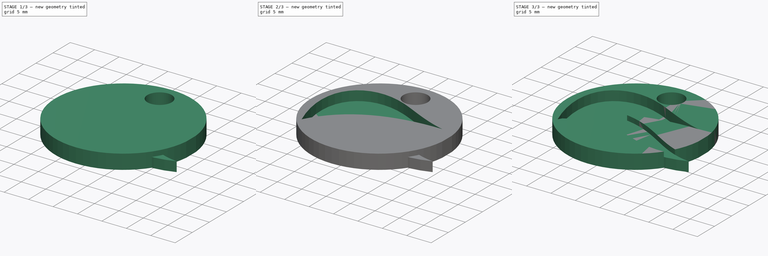
[diagram: build sequence overview — one tinted view per stage of 3, left to right]
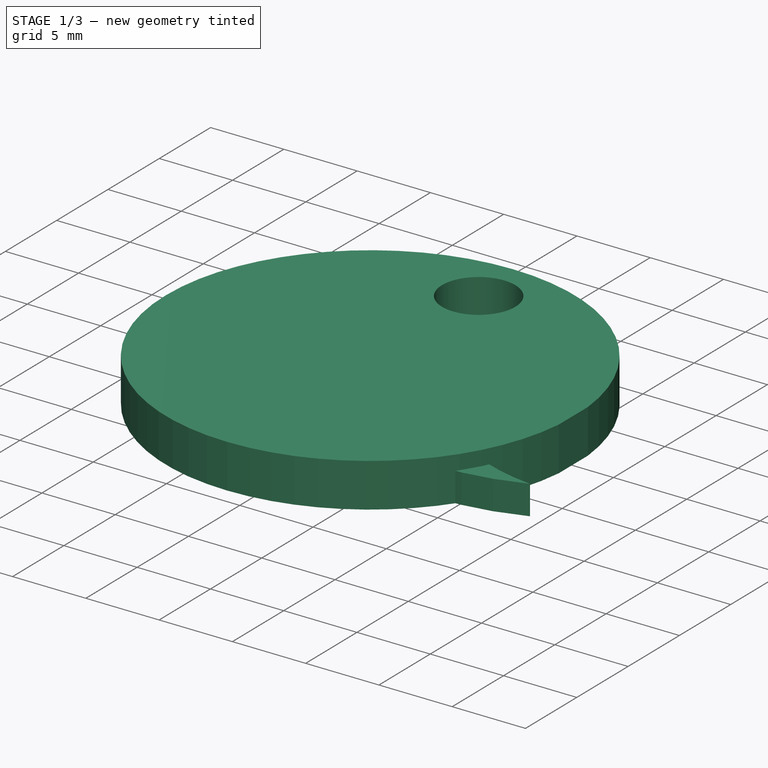
[diagram: stage 1 of 3 — iso view after this stage's code; geometry added in this stage tinted green]
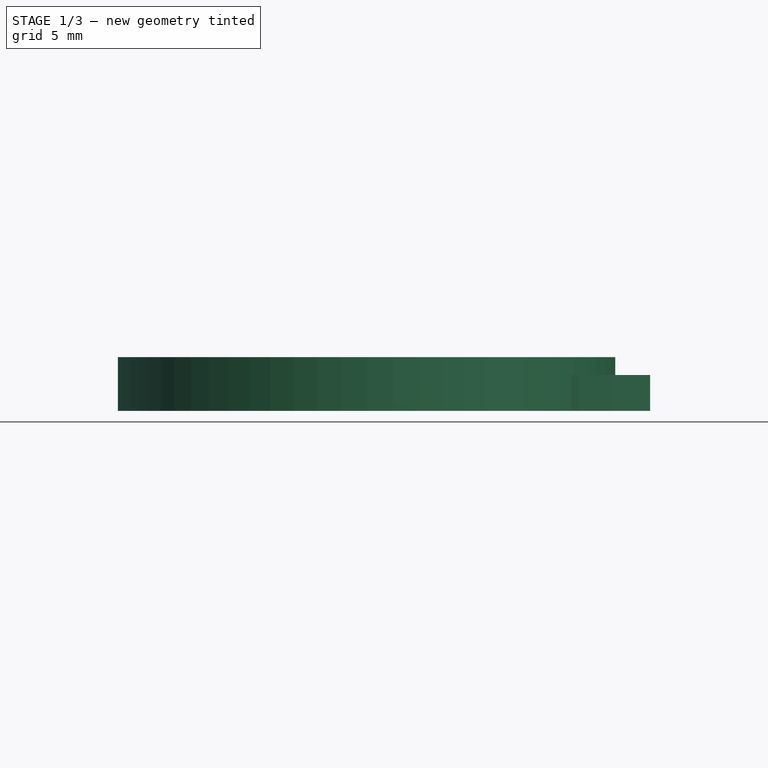
[diagram: stage 1 of 3 — front view after this stage's code; geometry added in this stage tinted green]
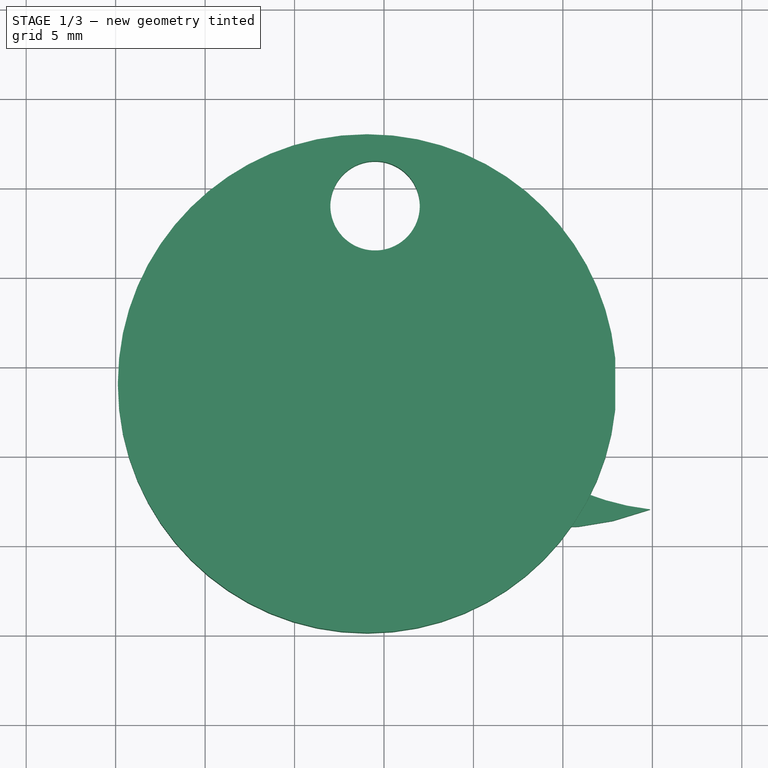
[diagram: stage 1 of 3 — top view after this stage's code; geometry added in this stage tinted green]
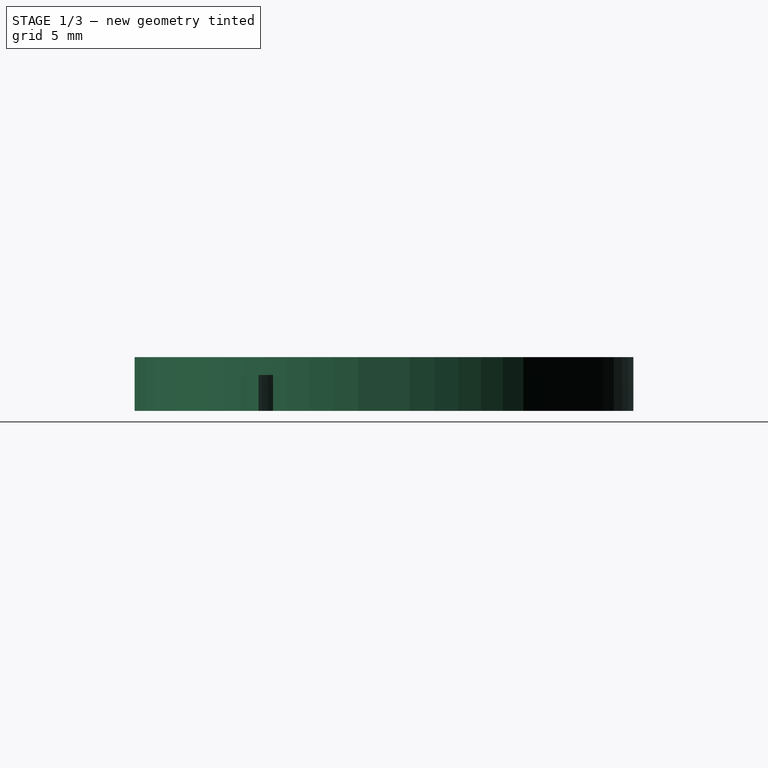
[diagram: stage 1 of 3 — right view after this stage's code; geometry added in this stage tinted green]
FCSTD DOCUMENT  (FreeCAD 0.16RUnknown)
Label: Qupzilla
License: CreativeCommons Attribution-ShareAlike
LicenseURL: http://creativecommons.org/licenses/by-sa/4.0/
objects: Sketcher::SketchObject×4, PartDesign::Pad×4, Part::Feature×2, Part::Cut×2, App::DocumentObjectGroup×1, Part::Fuse×1
note: 17 computed .brp shape members not serialized (recipe doc carries the construction recipe); baked Part::Feature solids carry a one-line shape summary decoded from their .brp

FEATURE [Part::Feature] Sweep  label="key-ring-model-1"
  Placement = pos=(-1.2,30.2546,1.6391) rot=(0.333333,0.881918,0.333333;1.69612rad)
  shape: bbox 3.31 x 27.02 x 26.33 mm, 4 faces (baked)
FEATURE [Part::Feature] Cut  label="key-model-1"
  Placement = pos=(-5.46976,36.5266,0) rot=(0,0,1;0.517888rad)
  shape: bbox 49.82 x 36.6 x 2.3 mm, 44 faces (baked)
FEATURE [App::DocumentObjectGroup] Group  label="Assembly"
  Group = -> [Sweep,Cut]
FEATURE [Sketcher::SketchObject] Sketch
  sketch-geometry (64):
    g0: LineSegment StartX=27.9261 StartY=15.4847 StartZ=0 EndX=27.9261 EndY=12.6345 EndZ=0
    g1: LineSegment StartX=27.9261 StartY=12.6345 StartZ=0 EndX=27.7149 EndY=11.2505 EndZ=0
    g2: LineSegment StartX=27.7149 StartY=11.2505 StartZ=0 EndX=27.3715 EndY=9.91471 EndZ=0
    g3: LineSegment StartX=27.3715 StartY=9.91471 StartZ=0 EndX=26.9028 EndY=8.6341 EndZ=0
    g4: LineSegment StartX=26.9028 StartY=8.6341 StartZ=0 EndX=26.3158 EndY=7.41568 EndZ=0
    g5: LineSegment StartX=26.3158 StartY=7.41568 StartZ=0 EndX=25.6176 EndY=6.26644 EndZ=0
    g6: LineSegment StartX=25.6176 StartY=6.26644 StartZ=0 EndX=24.8152 EndY=5.19341 EndZ=0
    g7: LineSegment StartX=24.8152 StartY=5.19341 StartZ=0 EndX=23.9156 EndY=4.20358 EndZ=0
    g8: LineSegment StartX=23.9156 StartY=4.20358 StartZ=0 EndX=22.9258 EndY=3.30396 EndZ=0
    g9: LineSegment StartX=22.9258 StartY=3.30396 StartZ=0 EndX=21.8527 EndY=2.50156 EndZ=0
    g10: LineSegment StartX=21.8527 StartY=2.50156 StartZ=0 EndX=20.7035 EndY=1.80338 EndZ=0
    g11: LineSegment StartX=20.7035 StartY=1.80338 StartZ=0 EndX=19.4851 EndY=1.21644 EndZ=0
    g12: LineSegment StartX=19.4851 StartY=1.21644 StartZ=0 EndX=18.2045 EndY=0.74773 EndZ=0
    g13: LineSegment StartX=18.2045 StartY=0.74773 StartZ=0 EndX=16.8687 EndY=0.40426 EndZ=0
    g14: LineSegment StartX=16.8687 StartY=0.40426 StartZ=0 EndX=15.4847 EndY=0.19304 EndZ=0
    g15: LineSegment StartX=15.4847 StartY=0.19304 StartZ=0 EndX=14.0596 EndY=0.12104 EndZ=0
    g16: LineSegment StartX=14.0596 StartY=0.12104 StartZ=0 EndX=12.6345 EndY=0.19304 EndZ=0
    g17: LineSegment StartX=12.6345 StartY=0.19304 StartZ=0 EndX=11.2505 EndY=0.40426 EndZ=0
    g18: LineSegment StartX=11.2505 StartY=0.40426 StartZ=0 EndX=9.9147 EndY=0.74773 EndZ=0
    g19: LineSegment StartX=9.9147 StartY=0.74773 StartZ=0 EndX=8.63409 EndY=1.21644 EndZ=0
    g20: LineSegment StartX=8.63409 StartY=1.21644 StartZ=0 EndX=7.41566 EndY=1.80339 EndZ=0
    g21: LineSegment StartX=7.41566 StartY=1.80339 StartZ=0 EndX=6.26643 EndY=2.50156 EndZ=0
    g22: LineSegment StartX=6.26643 StartY=2.50156 StartZ=0 EndX=5.1934 EndY=3.30396 EndZ=0
    g23: LineSegment StartX=5.1934 StartY=3.30396 StartZ=0 EndX=4.20357 EndY=4.20358 EndZ=0
    g24: LineSegment StartX=4.20357 StartY=4.20358 StartZ=0 EndX=3.30395 EndY=5.19341 EndZ=0
    g25: LineSegment StartX=3.30395 StartY=5.19341 StartZ=0 EndX=2.50155 EndY=6.26644 EndZ=0
    g26: LineSegment StartX=2.50155 StartY=6.26644 StartZ=0 EndX=1.80337 EndY=7.41568 EndZ=0
    g27: LineSegment StartX=1.80337 StartY=7.41568 StartZ=0 EndX=1.21643 EndY=8.6341 EndZ=0
    g28: LineSegment StartX=1.21643 StartY=8.6341 StartZ=0 EndX=0.747716 EndY=9.91471 EndZ=0
    g29: LineSegment StartX=0.747716 StartY=9.91471 StartZ=0 EndX=0.404249 EndY=11.2505 EndZ=0
    g30: LineSegment StartX=0.404249 StartY=11.2505 StartZ=0 EndX=0.19303 EndY=12.6345 EndZ=0
    g31: LineSegment StartX=0.19303 StartY=12.6345 StartZ=0 EndX=0.121068 EndY=14.0596 EndZ=0
    g32: LineSegment StartX=0.121068 StartY=14.0596 StartZ=0 EndX=0.193031 EndY=15.4847 EndZ=0
    g33: LineSegment StartX=0.193031 StartY=15.4847 StartZ=0 EndX=0.404249 EndY=16.8687 EndZ=0
    g34: LineSegment StartX=0.404249 StartY=16.8687 StartZ=0 EndX=0.747716 EndY=18.2045 EndZ=0
    g35: LineSegment StartX=0.747716 StartY=18.2045 StartZ=0 EndX=1.21643 EndY=19.4851 EndZ=0
    g36: LineSegment StartX=1.21643 StartY=19.4851 StartZ=0 EndX=1.80337 EndY=20.7035 EndZ=0
    g37: LineSegment StartX=1.80337 StartY=20.7035 StartZ=0 EndX=2.50155 EndY=21.8528 EndZ=0
    g38: LineSegment StartX=2.50155 StartY=21.8528 StartZ=0 EndX=3.30395 EndY=22.9258 EndZ=0
    g39: LineSegment StartX=3.30395 StartY=22.9258 StartZ=0 EndX=4.20357 EndY=23.9156 EndZ=0
    g40: LineSegment StartX=4.20357 StartY=23.9156 StartZ=0 EndX=5.1934 EndY=24.8152 EndZ=0
    g41: LineSegment StartX=5.1934 StartY=24.8152 StartZ=0 EndX=6.26643 EndY=25.6176 EndZ=0
    g42: LineSegment StartX=6.26643 StartY=25.6176 StartZ=0 EndX=7.41566 EndY=26.3158 EndZ=0
    g43: LineSegment StartX=7.41566 StartY=26.3158 StartZ=0 EndX=8.63409 EndY=26.9028 EndZ=0
    g44: LineSegment StartX=8.63409 StartY=26.9028 StartZ=0 EndX=9.9147 EndY=27.3715 EndZ=0
    g45: LineSegment StartX=9.9147 StartY=27.3715 StartZ=0 EndX=11.2505 EndY=27.7149 EndZ=0
    g46: LineSegment StartX=11.2505 StartY=27.7149 StartZ=0 EndX=12.6345 EndY=27.9262 EndZ=0
    g47: LineSegment StartX=12.6345 StartY=27.9262 StartZ=0 EndX=14.0596 EndY=27.9982 EndZ=0
    g48: LineSegment StartX=14.0596 StartY=27.9982 StartZ=0 EndX=15.4847 EndY=27.9262 EndZ=0
    g49: LineSegment StartX=15.4847 StartY=27.9262 StartZ=0 EndX=16.8687 EndY=27.7149 EndZ=0
    g50: LineSegment StartX=16.8687 StartY=27.7149 StartZ=0 EndX=18.2045 EndY=27.3715 EndZ=0
    g51: LineSegment StartX=18.2045 StartY=27.3715 StartZ=0 EndX=19.4851 EndY=26.9028 EndZ=0
    g52: LineSegment StartX=19.4851 StartY=26.9028 StartZ=0 EndX=20.7035 EndY=26.3158 EndZ=0
    g53: LineSegment StartX=20.7035 StartY=26.3158 StartZ=0 EndX=21.8527 EndY=25.6176 EndZ=0
    g54: LineSegment StartX=21.8527 StartY=25.6176 StartZ=0 EndX=22.9258 EndY=24.8152 EndZ=0
    g55: LineSegment StartX=22.9258 StartY=24.8152 StartZ=0 EndX=23.9156 EndY=23.9156 EndZ=0
    g56: LineSegment StartX=23.9156 StartY=23.9156 StartZ=0 EndX=24.8152 EndY=22.9258 EndZ=0
    g57: LineSegment StartX=24.8152 StartY=22.9258 StartZ=0 EndX=25.6176 EndY=21.8528 EndZ=0
    g58: LineSegment StartX=25.6176 StartY=21.8528 StartZ=0 EndX=26.3158 EndY=20.7035 EndZ=0
    g59: LineSegment StartX=26.3158 StartY=20.7035 StartZ=0 EndX=26.9027 EndY=19.4851 EndZ=0
    g60: LineSegment StartX=26.9027 StartY=19.4851 StartZ=0 EndX=27.3715 EndY=18.2045 EndZ=0
    g61: LineSegment StartX=27.3715 StartY=18.2045 StartZ=0 EndX=27.7149 EndY=16.8687 EndZ=0
    g62: LineSegment StartX=27.7149 StartY=16.8687 StartZ=0 EndX=27.9261 EndY=15.4847 EndZ=0
    g63: Circle CenterX=14.5 CenterY=24 CenterZ=0 NormalX=0 NormalY=0 NormalZ=1 Radius=2.5
  constraints (66):
    c: Coincident(g0,g1)
    c: Coincident(g1,g2)
    c: Coincident(g2,g3)
    c: Coincident(g3,g4)
    c: Coincident(g4,g5)
    c: Coincident(g5,g6)
    c: Coincident(g6,g7)
    c: Coincident(g7,g8)
    c: Coincident(g8,g9)
    c: Coincident(g9,g10)
    c: Coincident(g10,g11)
    c: Coincident(g11,g12)
    c: Coincident(g12,g13)
    c: Coincident(g13,g14)
    c: Coincident(g14,g15)
    c: Coincident(g15,g16)
    c: Coincident(g16,g17)
    c: Coincident(g17,g18)
    c: Coincident(g18,g19)
    c: Coincident(g19,g20)
    c: Coincident(g20,g21)
    c: Coincident(g21,g22)
    c: Coincident(g22,g23)
    c: Coincident(g23,g24)
    c: Coincident(g24,g25)
    c: Coincident(g25,g26)
    c: Coincident(g26,g27)
    c: Coincident(g27,g28)
    c: Coincident(g28,g29)
    c: Coincident(g29,g30)
    c: Coincident(g30,g31)
    c: Coincident(g31,g32)
    c: Coincident(g32,g33)
    c: Coincident(g33,g34)
    c: Coincident(g34,g35)
    c: Coincident(g35,g36)
    c: Coincident(g36,g37)
    c: Coincident(g37,g38)
    c: Coincident(g38,g39)
    c: Coincident(g39,g40)
    c: Coincident(g40,g41)
    c: Coincident(g41,g42)
    c: Coincident(g42,g43)
    c: Coincident(g43,g44)
    c: Coincident(g44,g45)
    c: Coincident(g45,g46)
    c: Coincident(g46,g47)
    c: Coincident(g47,g48)
    c: Coincident(g48,g49)
    c: Coincident(g49,g50)
    c: Coincident(g50,g51)
    c: Coincident(g51,g52)
    c: Coincident(g52,g53)
    c: Coincident(g53,g54)
    c: Coincident(g54,g55)
    c: Coincident(g55,g56)
    c: Coincident(g56,g57)
    c: Coincident(g57,g58)
    c: Coincident(g58,g59)
    c: Coincident(g59,g60)
    c: Coincident(g60,g61)
    c: Coincident(g61,g62)
    c: Coincident(g62,g0)
    c: DistanceY(g-1,g63) = 24
    c: DistanceX(g-1,g63) = 14.5
    c: Radius(g63) = 2.5
FEATURE [PartDesign::Pad] Pad
  Length = 3
  Length2 = 100
  Sketch = -> Sketch
  Type = 0
FEATURE [Sketcher::SketchObject] Sketch003
  sketch-geometry (63):
    g0: LineSegment StartX=4.0205 StartY=7.09668 StartZ=0 EndX=5.81067 EndY=8.1795 EndZ=0
    g1: LineSegment StartX=5.81067 StartY=8.1795 StartZ=0 EndX=7.49304 EndY=8.88748 EndZ=0
    g2: LineSegment StartX=7.49304 StartY=8.88748 StartZ=0 EndX=9.08583 EndY=9.26969 EndZ=0
    g3: LineSegment StartX=9.08583 StartY=9.26969 StartZ=0 EndX=10.6071 EndY=9.37547 EndZ=0
    g4: LineSegment StartX=10.6071 StartY=9.37547 StartZ=0 EndX=12.0751 EndY=9.25416 EndZ=0
    g5: LineSegment StartX=12.0751 StartY=9.25416 StartZ=0 EndX=13.5077 EndY=8.9551 EndZ=0
    g6: LineSegment StartX=13.5077 StartY=8.9551 StartZ=0 EndX=14.9232 EndY=8.52763 EndZ=0
    g7: LineSegment StartX=14.9232 StartY=8.52763 StartZ=0 EndX=16.3397 EndY=8.02108 EndZ=0
    g8: LineSegment StartX=16.3397 StartY=8.02108 StartZ=0 EndX=17.7753 EndY=7.4848 EndZ=0
    g9: LineSegment StartX=17.7753 StartY=7.4848 StartZ=0 EndX=19.248 EndY=6.96811 EndZ=0
    g10: LineSegment StartX=19.248 StartY=6.96811 StartZ=0 EndX=20.776 EndY=6.52037 EndZ=0
    g11: LineSegment StartX=20.776 StartY=6.52037 StartZ=0 EndX=22.3773 EndY=6.19091 EndZ=0
    g12: LineSegment StartX=22.3773 StartY=6.19091 StartZ=0 EndX=24.0702 EndY=6.02907 EndZ=0
    g13: LineSegment StartX=24.0702 StartY=6.02907 StartZ=0 EndX=25.8727 EndY=6.08417 EndZ=0
    g14: LineSegment StartX=25.8727 StartY=6.08417 StartZ=0 EndX=27.8029 EndY=6.40558 EndZ=0
    g15: LineSegment StartX=27.8029 StartY=6.40558 StartZ=0 EndX=29.879 EndY=7.04261 EndZ=0
    g16: LineSegment StartX=29.879 StartY=7.04261 StartZ=0 EndX=28.6043 EndY=7.24584 EndZ=0
    g17: LineSegment StartX=28.6043 StartY=7.24584 StartZ=0 EndX=27.3885 EndY=7.55599 EndZ=0
    g18: LineSegment StartX=27.3885 StartY=7.55599 StartZ=0 EndX=26.222 EndY=7.95761 EndZ=0
    g19: LineSegment StartX=26.222 StartY=7.95761 StartZ=0 EndX=25.0952 EndY=8.43525 EndZ=0
    g20: LineSegment StartX=25.0952 StartY=8.43525 StartZ=0 EndX=23.9984 EndY=8.97349 EndZ=0
    g21: LineSegment StartX=23.9984 StartY=8.97349 StartZ=0 EndX=22.9222 EndY=9.55688 EndZ=0
    g22: LineSegment StartX=22.9222 StartY=9.55688 StartZ=0 EndX=21.857 EndY=10.17 EndZ=0
    g23: LineSegment StartX=21.857 StartY=10.17 StartZ=0 EndX=20.7932 EndY=10.7973 EndZ=0
    g24: LineSegment StartX=20.7932 StartY=10.7973 StartZ=0 EndX=19.7212 EndY=11.4235 EndZ=0
    g25: LineSegment StartX=19.7212 StartY=11.4235 StartZ=0 EndX=18.6314 EndY=12.0331 EndZ=0
    g26: LineSegment StartX=18.6314 StartY=12.0331 StartZ=0 EndX=17.5144 EndY=12.6106 EndZ=0
    g27: LineSegment StartX=17.5144 StartY=12.6106 StartZ=0 EndX=16.3604 EndY=13.1407 EndZ=0
    g28: LineSegment StartX=16.3604 StartY=13.1407 StartZ=0 EndX=15.16 EndY=13.6078 EndZ=0
    g29: LineSegment StartX=15.16 StartY=13.6078 StartZ=0 EndX=13.9035 EndY=13.9965 EndZ=0
    g30: LineSegment StartX=13.9035 StartY=13.9965 StartZ=0 EndX=12.5814 EndY=14.2914 EndZ=0
    g31: LineSegment StartX=12.5814 StartY=14.2914 StartZ=0 EndX=11.1842 EndY=14.4771 EndZ=0
    g32: LineSegment StartX=11.1842 StartY=14.4771 StartZ=0 EndX=9.94987 EndY=14.4871 EndZ=0
    g33: LineSegment StartX=9.94987 StartY=14.4871 StartZ=0 EndX=8.81833 EndY=14.4497 EndZ=0
    g34: LineSegment StartX=8.81833 StartY=14.4497 StartZ=0 EndX=7.78999 EndY=14.3617 EndZ=0
    g35: LineSegment StartX=7.78999 StartY=14.3617 StartZ=0 EndX=6.86531 EndY=14.2199 EndZ=0
    g36: LineSegment StartX=6.86531 StartY=14.2199 StartZ=0 EndX=6.04474 EndY=14.0208 EndZ=0
    g37: LineSegment StartX=6.04474 StartY=14.0208 StartZ=0 EndX=5.32873 EndY=13.7612 EndZ=0
    g38: LineSegment StartX=5.32873 StartY=13.7612 StartZ=0 EndX=4.71774 EndY=13.4377 EndZ=0
    g39: LineSegment StartX=4.71774 StartY=13.4377 StartZ=0 EndX=4.21222 EndY=13.0468 EndZ=0
    g40: LineSegment StartX=4.21222 StartY=13.0468 StartZ=0 EndX=3.81263 EndY=12.5854 EndZ=0
    g41: LineSegment StartX=3.81263 StartY=12.5854 StartZ=0 EndX=3.5194 EndY=12.05 EndZ=0
    g42: LineSegment StartX=3.5194 StartY=12.05 StartZ=0 EndX=3.333 EndY=11.4373 EndZ=0
    g43: LineSegment StartX=3.333 StartY=11.4373 StartZ=0 EndX=3.25387 EndY=10.7439 EndZ=0
    g44: LineSegment StartX=3.25387 StartY=10.7439 StartZ=0 EndX=3.28248 EndY=9.96652 EndZ=0
    g45: LineSegment StartX=3.28248 StartY=9.96652 StartZ=0 EndX=3.41927 EndY=9.10174 EndZ=0
    g46: LineSegment StartX=3.41927 StartY=9.10174 StartZ=0 EndX=3.6647 EndY=8.14624 EndZ=0
    g47: LineSegment StartX=3.6647 StartY=8.14624 StartZ=0 EndX=4.01921 EndY=7.09667 EndZ=0
    g48: LineSegment StartX=4.01921 StartY=7.09667 StartZ=0 EndX=4.0193 EndY=7.09667 EndZ=0
    g49: LineSegment StartX=4.0193 StartY=7.09667 StartZ=0 EndX=4.01938 EndY=7.09667 EndZ=0
    g50: LineSegment StartX=4.01938 StartY=7.09667 StartZ=0 EndX=4.01947 EndY=7.09667 EndZ=0
    g51: LineSegment StartX=4.01947 StartY=7.09667 StartZ=0 EndX=4.01956 EndY=7.09668 EndZ=0
    g52: LineSegment StartX=4.01956 StartY=7.09668 StartZ=0 EndX=4.01964 EndY=7.09668 EndZ=0
    g53: LineSegment StartX=4.01964 StartY=7.09668 StartZ=0 EndX=4.01973 EndY=7.09668 EndZ=0
    g54: LineSegment StartX=4.01973 StartY=7.09668 StartZ=0 EndX=4.01981 EndY=7.09668 EndZ=0
    g55: LineSegment StartX=4.01981 StartY=7.09668 StartZ=0 EndX=4.0199 EndY=7.09669 EndZ=0
    g56: LineSegment StartX=4.0199 StartY=7.09669 StartZ=0 EndX=4.01999 EndY=7.09669 EndZ=0
    g57: LineSegment StartX=4.01999 StartY=7.09669 StartZ=0 EndX=4.02007 EndY=7.09669 EndZ=0
    g58: LineSegment StartX=4.02007 StartY=7.09669 StartZ=0 EndX=4.02016 EndY=7.09669 EndZ=0
    g59: LineSegment StartX=4.02016 StartY=7.09669 StartZ=0 EndX=4.02025 EndY=7.09669 EndZ=0
    g60: LineSegment StartX=4.02025 StartY=7.09669 StartZ=0 EndX=4.02033 EndY=7.09669 EndZ=0
    g61: LineSegment StartX=4.02033 StartY=7.09669 StartZ=0 EndX=4.02042 EndY=7.0967 EndZ=0
    g62: LineSegment StartX=4.02042 StartY=7.0967 StartZ=0 EndX=4.0205 EndY=7.09668 EndZ=0
  constraints (74):
    c: Coincident(g0,g1)
    c: Coincident(g1,g2)
    c: Coincident(g2,g3)
    c: Coincident(g3,g4)
    c: Coincident(g4,g5)
    c: Coincident(g5,g6)
    c: Coincident(g6,g7)
    c: Coincident(g7,g8)
    c: Coincident(g8,g9)
    c: Coincident(g9,g10)
    c: Coincident(g10,g11)
    c: Coincident(g11,g12)
    c: Coincident(g12,g13)
    c: Coincident(g13,g14)
    c: Coincident(g14,g15)
    c: Coincident(g15,g16)
    c: Coincident(g16,g17)
    c: Coincident(g17,g18)
    c: Coincident(g18,g19)
    c: Coincident(g19,g20)
    c: Coincident(g20,g21)
    c: Coincident(g21,g22)
    c: Coincident(g22,g23)
    c: Coincident(g23,g24)
    c: Coincident(g24,g25)
    c: Coincident(g25,g26)
    c: Coincident(g26,g27)
    c: Coincident(g27,g28)
    c: Coincident(g28,g29)
    c: Coincident(g29,g30)
    c: Coincident(g30,g31)
    c: Coincident(g31,g32)
    c: Coincident(g32,g33)
    c: Coincident(g33,g34)
    c: Coincident(g34,g35)
    c: Coincident(g35,g36)
    c: Coincident(g36,g37)
    c: Coincident(g37,g38)
    c: Coincident(g38,g39)
    c: Coincident(g39,g40)
    c: Coincident(g40,g41)
    c: Coincident(g41,g42)
    c: Coincident(g42,g43)
    c: Coincident(g43,g44)
    c: Coincident(g44,g45)
    c: Coincident(g45,g46)
    c: Coincident(g46,g47)
    c: Coincident(g47,g48)
    c: Coincident(g48,g49)
    c: Horizontal(g48)
    c: Coincident(g49,g50)
    c: Horizontal(g49)
    c: Coincident(g50,g51)
    c: Horizontal(g50)
    c: Coincident(g51,g52)
    c: Coincident(g52,g53)
    c: Horizontal(g52)
    c: Coincident(g53,g54)
    c: Horizontal(g53)
    c: Coincident(g54,g55)
    c: Horizontal(g54)
    c: Coincident(g55,g56)
    c: Coincident(g56,g57)
    c: Horizontal(g56)
    c: Coincident(g57,g58)
    c: Horizontal(g57)
    c: Coincident(g58,g59)
    c: Horizontal(g58)
    c: Coincident(g59,g60)
    c: Horizontal(g59)
    c: Coincident(g60,g61)
    c: Horizontal(g60)
    c: Coincident(g61,g62)
    c: Coincident(g62,g0)
FEATURE [PartDesign::Pad] Pad003
  Length = 2
  Length2 = 100
  Sketch = -> Sketch003
  Type = 0
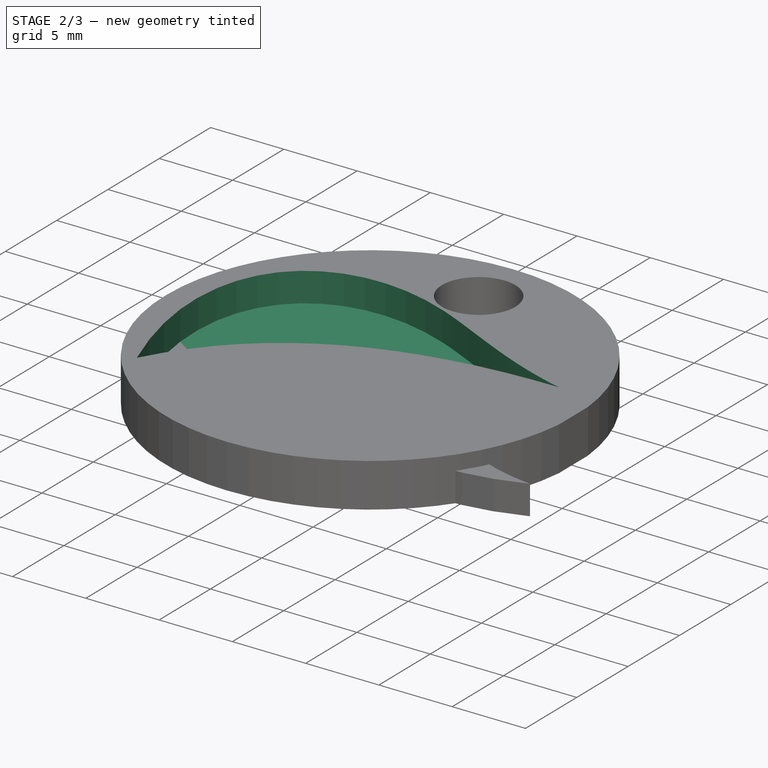
[diagram: stage 2 of 3 — iso view after this stage's code; geometry added in this stage tinted green]
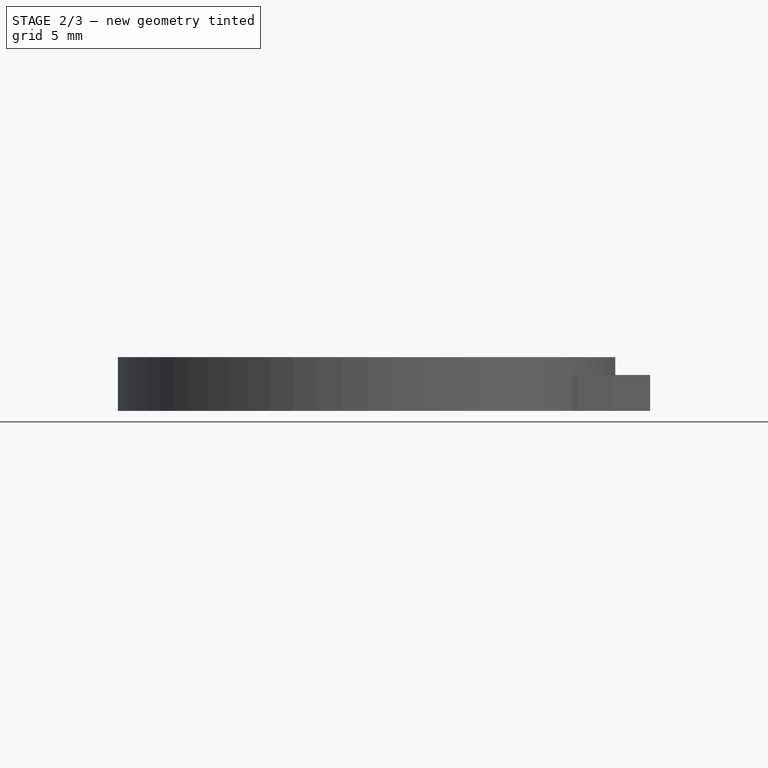
[diagram: stage 2 of 3 — front view after this stage's code; geometry added in this stage tinted green]
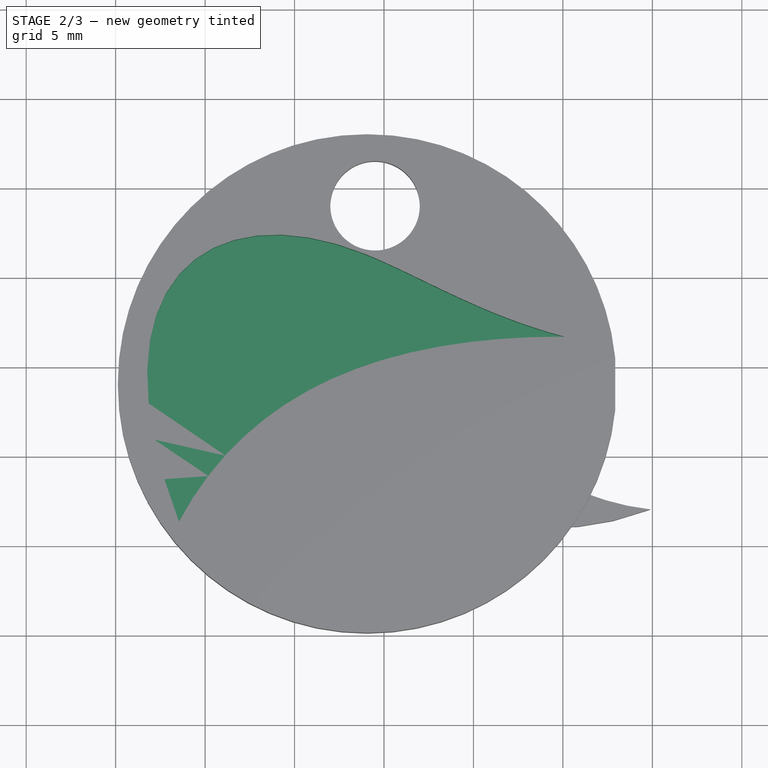
[diagram: stage 2 of 3 — top view after this stage's code; geometry added in this stage tinted green]
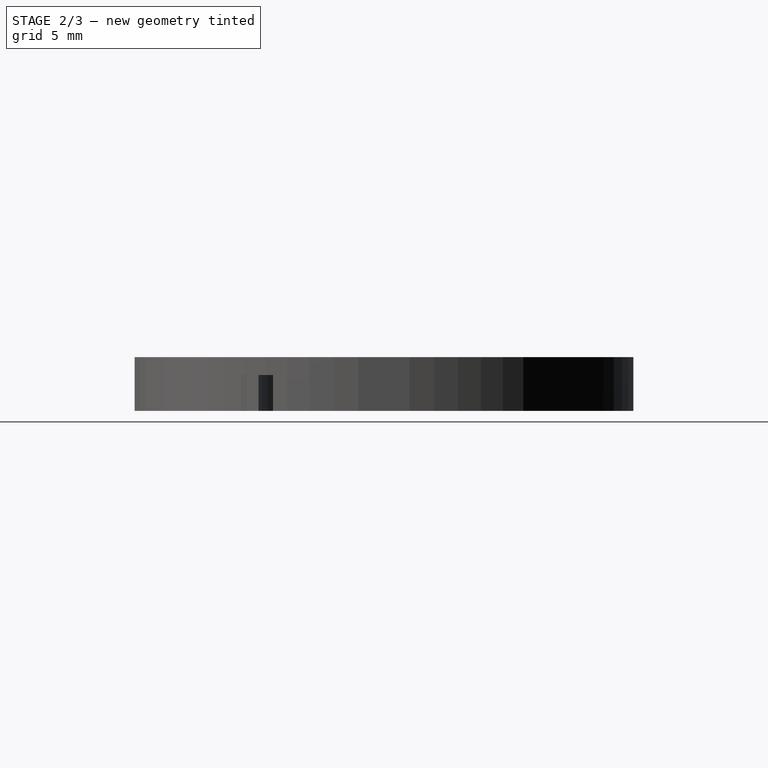
[diagram: stage 2 of 3 — right view after this stage's code; geometry added in this stage tinted green]
FEATURE [Sketcher::SketchObject] Sketch001
  Placement = pos=(0,0,1) rot=(0,0,1;0rad)
  sketch-geometry (63):
    g0: LineSegment StartX=3.53805 StartY=6.33837 StartZ=0 EndX=2.7124 EndY=8.74821 EndZ=0
    g1: LineSegment StartX=2.7124 StartY=8.74821 StartZ=0 EndX=2.152 EndY=10.9644 EndZ=0
    g2: LineSegment StartX=2.152 StartY=10.9644 StartZ=0 EndX=1.8422 EndY=12.9861 EndZ=0
    g3: LineSegment StartX=1.8422 StartY=12.9861 StartZ=0 EndX=1.76833 EndY=14.8126 EndZ=0
    g4: LineSegment StartX=1.76833 StartY=14.8126 StartZ=0 EndX=1.91574 EndY=16.4436 EndZ=0
    g5: LineSegment StartX=1.91574 StartY=16.4436 StartZ=0 EndX=2.26974 EndY=17.8783 EndZ=0
    g6: LineSegment StartX=2.26974 StartY=17.8783 StartZ=0 EndX=2.81569 EndY=19.1161 EndZ=0
    g7: LineSegment StartX=2.81569 StartY=19.1161 StartZ=0 EndX=3.53892 EndY=20.1565 EndZ=0
    g8: LineSegment StartX=3.53892 StartY=20.1565 StartZ=0 EndX=4.42475 EndY=20.9989 EndZ=0
    g9: LineSegment StartX=4.42475 StartY=20.9989 StartZ=0 EndX=5.45854 EndY=21.6427 EndZ=0
    g10: LineSegment StartX=5.45854 StartY=21.6427 StartZ=0 EndX=6.62561 EndY=22.0873 EndZ=0
    g11: LineSegment StartX=6.62561 StartY=22.0873 StartZ=0 EndX=7.91131 EndY=22.332 EndZ=0
    g12: LineSegment StartX=7.91131 StartY=22.332 StartZ=0 EndX=9.30096 EndY=22.3764 EndZ=0
    g13: LineSegment StartX=9.30096 StartY=22.3764 StartZ=0 EndX=10.7799 EndY=22.2199 EndZ=0
    g14: LineSegment StartX=10.7799 StartY=22.2199 StartZ=0 EndX=12.3335 EndY=21.8618 EndZ=0
    g15: LineSegment StartX=12.3335 StartY=21.8618 StartZ=0 EndX=13.947 EndY=21.3015 EndZ=0
    g16: LineSegment StartX=13.947 StartY=21.3015 StartZ=0 EndX=14.5253 EndY=21.0595 EndZ=0
    g17: LineSegment StartX=14.5253 StartY=21.0595 StartZ=0 EndX=15.1145 EndY=20.798 EndZ=0
    g18: LineSegment StartX=15.1145 StartY=20.798 StartZ=0 EndX=15.7156 EndY=20.52 EndZ=0
    g19: LineSegment StartX=15.7156 StartY=20.52 StartZ=0 EndX=16.3298 EndY=20.2281 EndZ=0
    g20: LineSegment StartX=16.3298 StartY=20.2281 StartZ=0 EndX=16.958 EndY=19.9253 EndZ=0
    g21: LineSegment StartX=16.958 StartY=19.9253 StartZ=0 EndX=17.6013 EndY=19.6143 EndZ=0
    g22: LineSegment StartX=17.6013 StartY=19.6143 StartZ=0 EndX=18.2606 EndY=19.2981 EndZ=0
    g23: LineSegment StartX=18.2606 StartY=19.2981 StartZ=0 EndX=18.937 EndY=18.9794 EndZ=0
    g24: LineSegment StartX=18.937 StartY=18.9794 StartZ=0 EndX=19.6316 EndY=18.6611 EndZ=0
    g25: LineSegment StartX=19.6316 StartY=18.6611 StartZ=0 EndX=20.3453 EndY=18.346 EndZ=0
    g26: LineSegment StartX=20.3453 StartY=18.346 StartZ=0 EndX=21.0791 EndY=18.037 EndZ=0
    g27: LineSegment StartX=21.0791 StartY=18.037 StartZ=0 EndX=21.8342 EndY=17.7368 EndZ=0
    g28: LineSegment StartX=21.8342 StartY=17.7368 StartZ=0 EndX=22.6114 EndY=17.4484 EndZ=0
    g29: LineSegment StartX=22.6114 StartY=17.4484 StartZ=0 EndX=23.4119 EndY=17.1745 EndZ=0
    g30: LineSegment StartX=23.4119 StartY=17.1745 StartZ=0 EndX=24.2367 EndY=16.9179 EndZ=0
    g31: LineSegment StartX=24.2367 StartY=16.9179 StartZ=0 EndX=25.0867 EndY=16.6816 EndZ=0
    g32: LineSegment StartX=25.0867 StartY=16.6816 StartZ=0 EndX=23.2422 EndY=16.6514 EndZ=0
    g33: LineSegment StartX=23.2422 StartY=16.6514 StartZ=0 EndX=21.4555 EndY=16.5498 EndZ=0
    g34: LineSegment StartX=21.4555 StartY=16.5498 StartZ=0 EndX=19.7284 EndY=16.3741 EndZ=0
    g35: LineSegment StartX=19.7284 StartY=16.3741 StartZ=0 EndX=18.0628 EndY=16.1224 EndZ=0
    g36: LineSegment StartX=18.0628 StartY=16.1224 StartZ=0 EndX=16.4606 EndY=15.7922 EndZ=0
    g37: LineSegment StartX=16.4606 StartY=15.7922 StartZ=0 EndX=14.9235 EndY=15.3814 EndZ=0
    g38: LineSegment StartX=14.9235 StartY=15.3814 StartZ=0 EndX=13.4534 EndY=14.8877 EndZ=0
    g39: LineSegment StartX=13.4534 StartY=14.8877 StartZ=0 EndX=12.052 EndY=14.3089 EndZ=0
    g40: LineSegment StartX=12.052 StartY=14.3089 StartZ=0 EndX=10.7214 EndY=13.6426 EndZ=0
    g41: LineSegment StartX=10.7214 StartY=13.6426 StartZ=0 EndX=9.46314 EndY=12.8867 EndZ=0
    g42: LineSegment StartX=9.46314 StartY=12.8867 StartZ=0 EndX=8.27922 EndY=12.0388 EndZ=0
    g43: LineSegment StartX=8.27922 StartY=12.0388 StartZ=0 EndX=7.17142 EndY=11.0968 EndZ=0
    g44: LineSegment StartX=7.17142 StartY=11.0968 StartZ=0 EndX=6.14157 EndY=10.0583 EndZ=0
    g45: LineSegment StartX=6.14157 StartY=10.0583 StartZ=0 EndX=5.19151 EndY=8.9211 EndZ=0
    g46: LineSegment StartX=5.19151 StartY=8.9211 StartZ=0 EndX=4.32306 EndY=7.68296 EndZ=0
    g47: LineSegment StartX=4.32306 StartY=7.68296 StartZ=0 EndX=3.53805 EndY=6.34161 EndZ=0
    g48: LineSegment StartX=3.53805 StartY=6.34161 StartZ=0 EndX=3.53805 EndY=6.34139 EndZ=0
    g49: LineSegment StartX=3.53805 StartY=6.34139 StartZ=0 EndX=3.53805 EndY=6.34118 EndZ=0
    g50: LineSegment StartX=3.53805 StartY=6.34118 StartZ=0 EndX=3.53805 EndY=6.34096 EndZ=0
    g51: LineSegment StartX=3.53805 StartY=6.34096 StartZ=0 EndX=3.53805 EndY=6.34075 EndZ=0
    g52: LineSegment StartX=3.53805 StartY=6.34075 StartZ=0 EndX=3.53805 EndY=6.34053 EndZ=0
    g53: LineSegment StartX=3.53805 StartY=6.34053 StartZ=0 EndX=3.53805 EndY=6.34032 EndZ=0
    g54: LineSegment StartX=3.53805 StartY=6.34032 StartZ=0 EndX=3.53805 EndY=6.3401 EndZ=0
    g55: LineSegment StartX=3.53805 StartY=6.3401 StartZ=0 EndX=3.53805 EndY=6.33988 EndZ=0
    g56: LineSegment StartX=3.53805 StartY=6.33988 StartZ=0 EndX=3.53805 EndY=6.33966 EndZ=0
    g57: LineSegment StartX=3.53805 StartY=6.33966 StartZ=0 EndX=3.53805 EndY=6.33945 EndZ=0
    g58: LineSegment StartX=3.53805 StartY=6.33945 StartZ=0 EndX=3.53805 EndY=6.33923 EndZ=0
    g59: LineSegment StartX=3.53805 StartY=6.33923 StartZ=0 EndX=3.53805 EndY=6.33902 EndZ=0
    g60: LineSegment StartX=3.53805 StartY=6.33902 StartZ=0 EndX=3.53805 EndY=6.3388 EndZ=0
    g61: LineSegment StartX=3.53805 StartY=6.3388 StartZ=0 EndX=3.53805 EndY=6.33859 EndZ=0
    g62: LineSegment StartX=3.53805 StartY=6.33859 StartZ=0 EndX=3.53805 EndY=6.33837 EndZ=0
  constraints (77):
    c: Coincident(g0,g1)
    c: Coincident(g1,g2)
    c: Coincident(g2,g3)
    c: Coincident(g3,g4)
    c: Coincident(g4,g5)
    c: Coincident(g5,g6)
    c: Coincident(g6,g7)
    c: Coincident(g7,g8)
    c: Coincident(g8,g9)
    c: Coincident(g9,g10)
    c: Coincident(g10,g11)
    c: Coincident(g11,g12)
    c: Coincident(g12,g13)
    c: Coincident(g13,g14)
    c: Coincident(g14,g15)
    c: Coincident(g15,g16)
    c: Coincident(g16,g17)
    c: Coincident(g17,g18)
    c: Coincident(g18,g19)
    c: Coincident(g19,g20)
    c: Coincident(g20,g21)
    c: Coincident(g21,g22)
    c: Coincident(g22,g23)
    c: Coincident(g23,g24)
    c: Coincident(g24,g25)
    c: Coincident(g25,g26)
    c: Coincident(g26,g27)
    c: Coincident(g27,g28)
    c: Coincident(g28,g29)
    c: Coincident(g29,g30)
    c: Coincident(g30,g31)
    c: Coincident(g31,g32)
    c: Coincident(g32,g33)
    c: Coincident(g33,g34)
    c: Coincident(g34,g35)
    c: Coincident(g35,g36)
    c: Coincident(g36,g37)
    c: Coincident(g37,g38)
    c: Coincident(g38,g39)
    c: Coincident(g39,g40)
    c: Coincident(g40,g41)
    c: Coincident(g41,g42)
    c: Coincident(g42,g43)
    c: Coincident(g43,g44)
    c: Coincident(g44,g45)
    c: Coincident(g45,g46)
    c: Coincident(g46,g47)
    c: Coincident(g47,g48)
    c: Coincident(g48,g49)
    c: Vertical(g48)
    c: Coincident(g49,g50)
    c: Vertical(g49)
    c: Coincident(g50,g51)
    c: Vertical(g50)
    c: Coincident(g51,g52)
    c: Vertical(g51)
    c: Coincident(g52,g53)
    c: Vertical(g52)
    c: Coincident(g53,g54)
    c: Vertical(g53)
    c: Coincident(g54,g55)
    c: Vertical(g54)
    c: Coincident(g55,g56)
    c: Vertical(g55)
    c: Coincident(g56,g57)
    c: Vertical(g56)
    c: Coincident(g57,g58)
    c: Vertical(g57)
    c: Coincident(g58,g59)
    c: Vertical(g58)
    c: Coincident(g59,g60)
    c: Vertical(g59)
    c: Coincident(g60,g61)
    c: Vertical(g60)
    c: Coincident(g61,g62)
    c: Vertical(g61)
    c: Coincident(g62,g0)
FEATURE [PartDesign::Pad] Pad001
  Length = 3
  Length2 = 100
  Placement = pos=(0,0,1) rot=(0,0,1;0rad)
  Sketch = -> Sketch001
  Type = 0
FEATURE [Part::Fuse] Fusion
  Base = -> Pad
  Tool = -> Pad003
FEATURE [Part::Cut] Cut001
  Base = -> Fusion
  Tool = -> Pad001
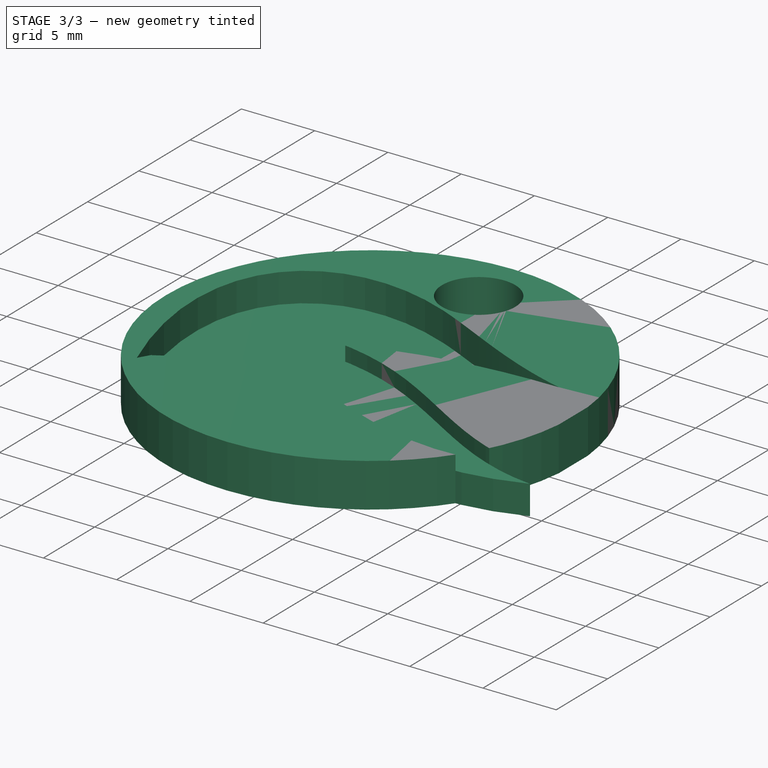
[diagram: stage 3 of 3 — iso view after this stage's code; geometry added in this stage tinted green]
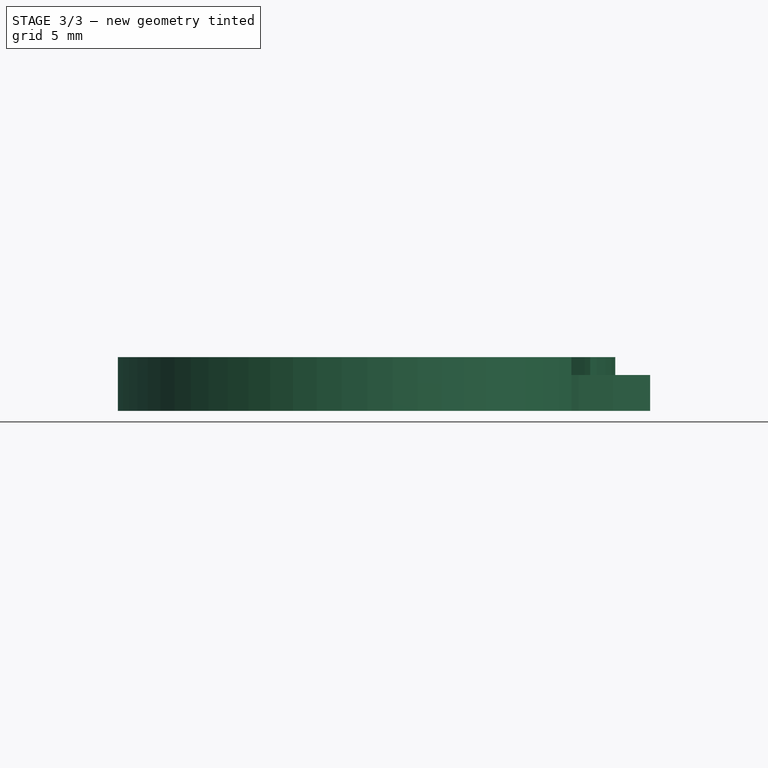
[diagram: stage 3 of 3 — front view after this stage's code; geometry added in this stage tinted green]
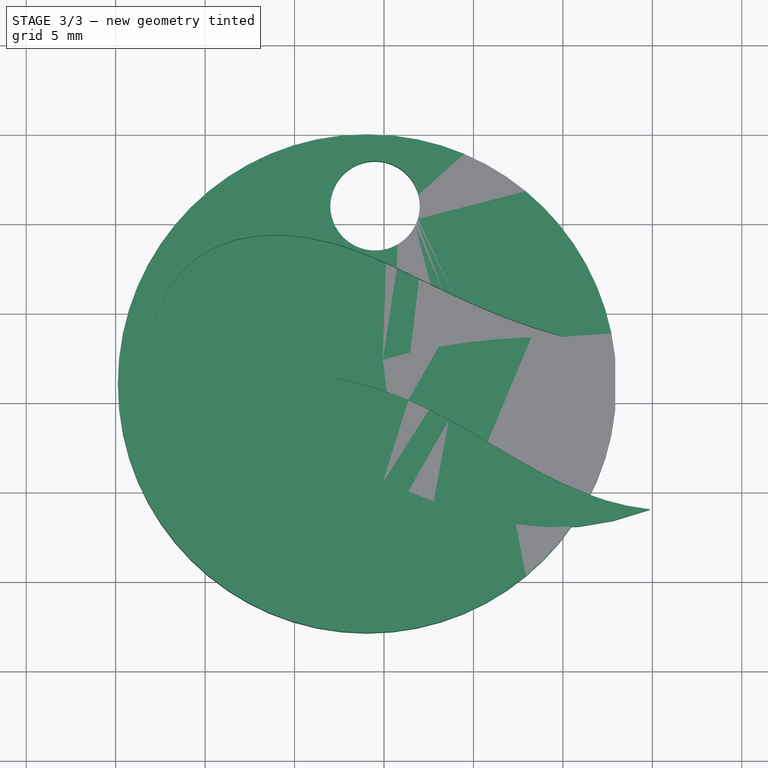
[diagram: stage 3 of 3 — top view after this stage's code; geometry added in this stage tinted green]
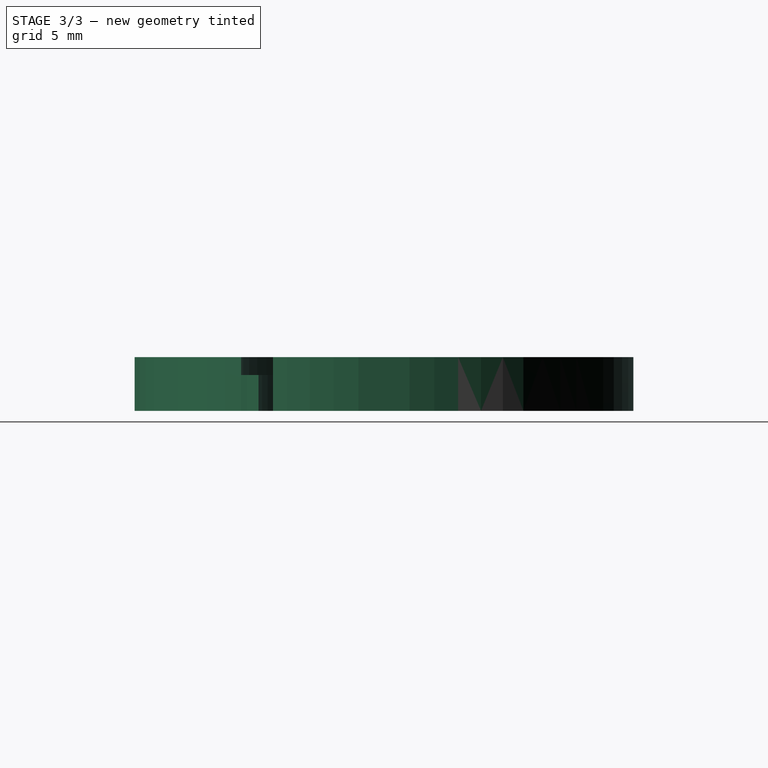
[diagram: stage 3 of 3 — right view after this stage's code; geometry added in this stage tinted green]
FEATURE [Sketcher::SketchObject] Sketch002
  Placement = pos=(0,0,2) rot=(0,0,1;0rad)
  sketch-geometry (63):
    g0: LineSegment StartX=4.0205 StartY=7.09668 StartZ=0 EndX=5.81067 EndY=8.1795 EndZ=0
    g1: LineSegment StartX=5.81067 StartY=8.1795 StartZ=0 EndX=7.49304 EndY=8.88748 EndZ=0
    g2: LineSegment StartX=7.49304 StartY=8.88748 StartZ=0 EndX=9.08583 EndY=9.26969 EndZ=0
    g3: LineSegment StartX=9.08583 StartY=9.26969 StartZ=0 EndX=10.6071 EndY=9.37547 EndZ=0
    g4: LineSegment StartX=10.6071 StartY=9.37547 StartZ=0 EndX=12.0751 EndY=9.25416 EndZ=0
    g5: LineSegment StartX=12.0751 StartY=9.25416 StartZ=0 EndX=13.5077 EndY=8.9551 EndZ=0
    g6: LineSegment StartX=13.5077 StartY=8.9551 StartZ=0 EndX=14.9232 EndY=8.52763 EndZ=0
    g7: LineSegment StartX=14.9232 StartY=8.52763 StartZ=0 EndX=16.3397 EndY=8.02108 EndZ=0
    g8: LineSegment StartX=16.3397 StartY=8.02108 StartZ=0 EndX=17.7753 EndY=7.4848 EndZ=0
    g9: LineSegment StartX=17.7753 StartY=7.4848 StartZ=0 EndX=19.248 EndY=6.96811 EndZ=0
    g10: LineSegment StartX=19.248 StartY=6.96811 StartZ=0 EndX=20.776 EndY=6.52037 EndZ=0
    g11: LineSegment StartX=20.776 StartY=6.52037 StartZ=0 EndX=22.3773 EndY=6.19091 EndZ=0
    g12: LineSegment StartX=22.3773 StartY=6.19091 StartZ=0 EndX=24.0702 EndY=6.02907 EndZ=0
    g13: LineSegment StartX=24.0702 StartY=6.02907 StartZ=0 EndX=25.8727 EndY=6.08417 EndZ=0
    g14: LineSegment StartX=25.8727 StartY=6.08417 StartZ=0 EndX=27.8029 EndY=6.40558 EndZ=0
    g15: LineSegment StartX=27.8029 StartY=6.40558 StartZ=0 EndX=29.879 EndY=7.04261 EndZ=0
    g16: LineSegment StartX=29.879 StartY=7.04261 StartZ=0 EndX=28.6043 EndY=7.24584 EndZ=0
    g17: LineSegment StartX=28.6043 StartY=7.24584 StartZ=0 EndX=27.3885 EndY=7.55599 EndZ=0
    g18: LineSegment StartX=27.3885 StartY=7.55599 StartZ=0 EndX=26.222 EndY=7.95761 EndZ=0
    g19: LineSegment StartX=26.222 StartY=7.95761 StartZ=0 EndX=25.0952 EndY=8.43525 EndZ=0
    g20: LineSegment StartX=25.0952 StartY=8.43525 StartZ=0 EndX=23.9984 EndY=8.97349 EndZ=0
    g21: LineSegment StartX=23.9984 StartY=8.97349 StartZ=0 EndX=22.9222 EndY=9.55688 EndZ=0
    g22: LineSegment StartX=22.9222 StartY=9.55688 StartZ=0 EndX=21.857 EndY=10.17 EndZ=0
    g23: LineSegment StartX=21.857 StartY=10.17 StartZ=0 EndX=20.7932 EndY=10.7973 EndZ=0
    g24: LineSegment StartX=20.7932 StartY=10.7973 StartZ=0 EndX=19.7212 EndY=11.4235 EndZ=0
    g25: LineSegment StartX=19.7212 StartY=11.4235 StartZ=0 EndX=18.6314 EndY=12.0331 EndZ=0
    g26: LineSegment StartX=18.6314 StartY=12.0331 StartZ=0 EndX=17.5144 EndY=12.6106 EndZ=0
    g27: LineSegment StartX=17.5144 StartY=12.6106 StartZ=0 EndX=16.3604 EndY=13.1407 EndZ=0
    g28: LineSegment StartX=16.3604 StartY=13.1407 StartZ=0 EndX=15.16 EndY=13.6078 EndZ=0
    g29: LineSegment StartX=15.16 StartY=13.6078 StartZ=0 EndX=13.9035 EndY=13.9965 EndZ=0
    g30: LineSegment StartX=13.9035 StartY=13.9965 StartZ=0 EndX=12.5814 EndY=14.2914 EndZ=0
    g31: LineSegment StartX=12.5814 StartY=14.2914 StartZ=0 EndX=11.1842 EndY=14.4771 EndZ=0
    g32: LineSegment StartX=11.1842 StartY=14.4771 StartZ=0 EndX=9.94987 EndY=14.4871 EndZ=0
    g33: LineSegment StartX=9.94987 StartY=14.4871 StartZ=0 EndX=8.81833 EndY=14.4497 EndZ=0
    g34: LineSegment StartX=8.81833 StartY=14.4497 StartZ=0 EndX=7.78999 EndY=14.3617 EndZ=0
    g35: LineSegment StartX=7.78999 StartY=14.3617 StartZ=0 EndX=6.86531 EndY=14.2199 EndZ=0
    g36: LineSegment StartX=6.86531 StartY=14.2199 StartZ=0 EndX=6.04474 EndY=14.0208 EndZ=0
    g37: LineSegment StartX=6.04474 StartY=14.0208 StartZ=0 EndX=5.32873 EndY=13.7612 EndZ=0
    g38: LineSegment StartX=5.32873 StartY=13.7612 StartZ=0 EndX=4.71774 EndY=13.4377 EndZ=0
    g39: LineSegment StartX=4.71774 StartY=13.4377 StartZ=0 EndX=4.21222 EndY=13.0468 EndZ=0
    g40: LineSegment StartX=4.21222 StartY=13.0468 StartZ=0 EndX=3.81263 EndY=12.5854 EndZ=0
    g41: LineSegment StartX=3.81263 StartY=12.5854 StartZ=0 EndX=3.5194 EndY=12.05 EndZ=0
    g42: LineSegment StartX=3.5194 StartY=12.05 StartZ=0 EndX=3.333 EndY=11.4373 EndZ=0
    g43: LineSegment StartX=3.333 StartY=11.4373 StartZ=0 EndX=3.25387 EndY=10.7439 EndZ=0
    g44: LineSegment StartX=3.25387 StartY=10.7439 StartZ=0 EndX=3.28248 EndY=9.96652 EndZ=0
    g45: LineSegment StartX=3.28248 StartY=9.96652 StartZ=0 EndX=3.41927 EndY=9.10174 EndZ=0
    g46: LineSegment StartX=3.41927 StartY=9.10174 StartZ=0 EndX=3.6647 EndY=8.14624 EndZ=0
    g47: LineSegment StartX=3.6647 StartY=8.14624 StartZ=0 EndX=4.01921 EndY=7.09667 EndZ=0
    g48: LineSegment StartX=4.01921 StartY=7.09667 StartZ=0 EndX=4.0193 EndY=7.09667 EndZ=0
    g49: LineSegment StartX=4.0193 StartY=7.09667 StartZ=0 EndX=4.01938 EndY=7.09667 EndZ=0
    g50: LineSegment StartX=4.01938 StartY=7.09667 StartZ=0 EndX=4.01947 EndY=7.09667 EndZ=0
    g51: LineSegment StartX=4.01947 StartY=7.09667 StartZ=0 EndX=4.01956 EndY=7.09668 EndZ=0
    g52: LineSegment StartX=4.01956 StartY=7.09668 StartZ=0 EndX=4.01964 EndY=7.09668 EndZ=0
    g53: LineSegment StartX=4.01964 StartY=7.09668 StartZ=0 EndX=4.01973 EndY=7.09668 EndZ=0
    g54: LineSegment StartX=4.01973 StartY=7.09668 StartZ=0 EndX=4.01981 EndY=7.09668 EndZ=0
    g55: LineSegment StartX=4.01981 StartY=7.09668 StartZ=0 EndX=4.0199 EndY=7.09669 EndZ=0
    g56: LineSegment StartX=4.0199 StartY=7.09669 StartZ=0 EndX=4.01999 EndY=7.09669 EndZ=0
    g57: LineSegment StartX=4.01999 StartY=7.09669 StartZ=0 EndX=4.02007 EndY=7.09669 EndZ=0
    g58: LineSegment StartX=4.02007 StartY=7.09669 StartZ=0 EndX=4.02016 EndY=7.09669 EndZ=0
    g59: LineSegment StartX=4.02016 StartY=7.09669 StartZ=0 EndX=4.02025 EndY=7.09669 EndZ=0
    g60: LineSegment StartX=4.02025 StartY=7.09669 StartZ=0 EndX=4.02033 EndY=7.09669 EndZ=0
    g61: LineSegment StartX=4.02033 StartY=7.09669 StartZ=0 EndX=4.02042 EndY=7.0967 EndZ=0
    g62: LineSegment StartX=4.02042 StartY=7.0967 StartZ=0 EndX=4.0205 EndY=7.09668 EndZ=0
  constraints (74):
    c: Coincident(g0,g1)
    c: Coincident(g1,g2)
    c: Coincident(g2,g3)
    c: Coincident(g3,g4)
    c: Coincident(g4,g5)
    c: Coincident(g5,g6)
    c: Coincident(g6,g7)
    c: Coincident(g7,g8)
    c: Coincident(g8,g9)
    c: Coincident(g9,g10)
    c: Coincident(g10,g11)
    c: Coincident(g11,g12)
    c: Coincident(g12,g13)
    c: Coincident(g13,g14)
    c: Coincident(g14,g15)
    c: Coincident(g15,g16)
    c: Coincident(g16,g17)
    c: Coincident(g17,g18)
    c: Coincident(g18,g19)
    c: Coincident(g19,g20)
    c: Coincident(g20,g21)
    c: Coincident(g21,g22)
    c: Coincident(g22,g23)
    c: Coincident(g23,g24)
    c: Coincident(g24,g25)
    c: Coincident(g25,g26)
    c: Coincident(g26,g27)
    c: Coincident(g27,g28)
    c: Coincident(g28,g29)
    c: Coincident(g29,g30)
    c: Coincident(g30,g31)
    c: Coincident(g31,g32)
    c: Coincident(g32,g33)
    c: Coincident(g33,g34)
    c: Coincident(g34,g35)
    c: Coincident(g35,g36)
    c: Coincident(g36,g37)
    c: Coincident(g37,g38)
    c: Coincident(g38,g39)
    c: Coincident(g39,g40)
    c: Coincident(g40,g41)
    c: Coincident(g41,g42)
    c: Coincident(g42,g43)
    c: Coincident(g43,g44)
    c: Coincident(g44,g45)
    c: Coincident(g45,g46)
    c: Coincident(g46,g47)
    c: Coincident(g47,g48)
    c: Coincident(g48,g49)
    c: Horizontal(g48)
    c: Coincident(g49,g50)
    c: Horizontal(g49)
    c: Coincident(g50,g51)
    c: Horizontal(g50)
    c: Coincident(g51,g52)
    c: Coincident(g52,g53)
    c: Horizontal(g52)
    c: Coincident(g53,g54)
    c: Horizontal(g53)
    c: Coincident(g54,g55)
    c: Horizontal(g54)
    c: Coincident(g55,g56)
    c: Coincident(g56,g57)
    c: Horizontal(g56)
    c: Coincident(g57,g58)
    c: Horizontal(g57)
    c: Coincident(g58,g59)
    c: Horizontal(g58)
    c: Coincident(g59,g60)
    c: Horizontal(g59)
    c: Coincident(g60,g61)
    c: Horizontal(g60)
    c: Coincident(g61,g62)
    c: Coincident(g62,g0)
FEATURE [PartDesign::Pad] Pad002
  Length = 3
  Length2 = 100
  Placement = pos=(0,0,2) rot=(0,0,1;0rad)
  Sketch = -> Sketch002
  Type = 0
FEATURE [Part::Cut] Cut002
  Base = -> Cut001
  Placement = pos=(-15,-3,0) rot=(0,0,1;0rad)
  Tool = -> Pad002
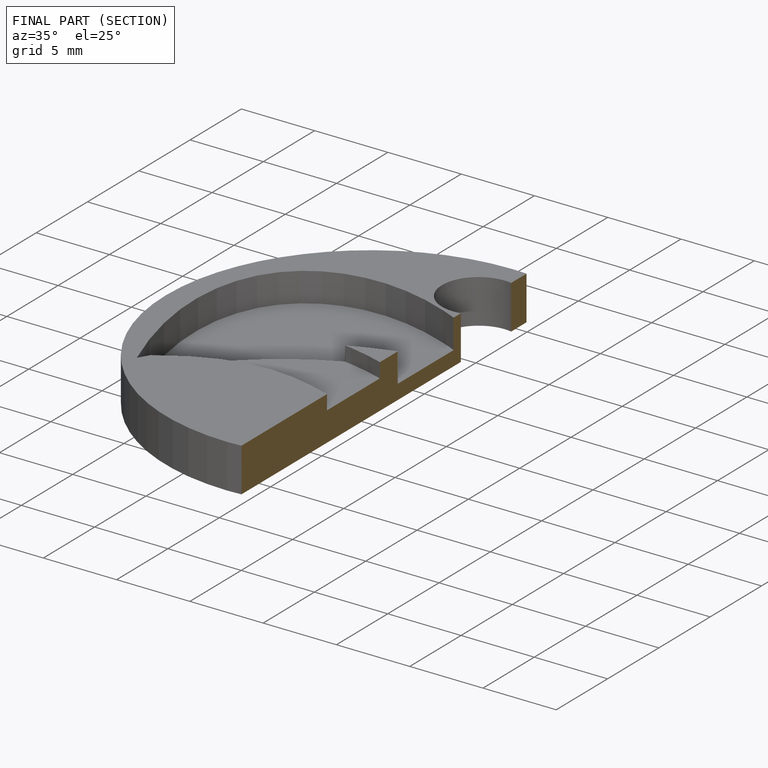
[diagram: finished part — half-section view (interior)]
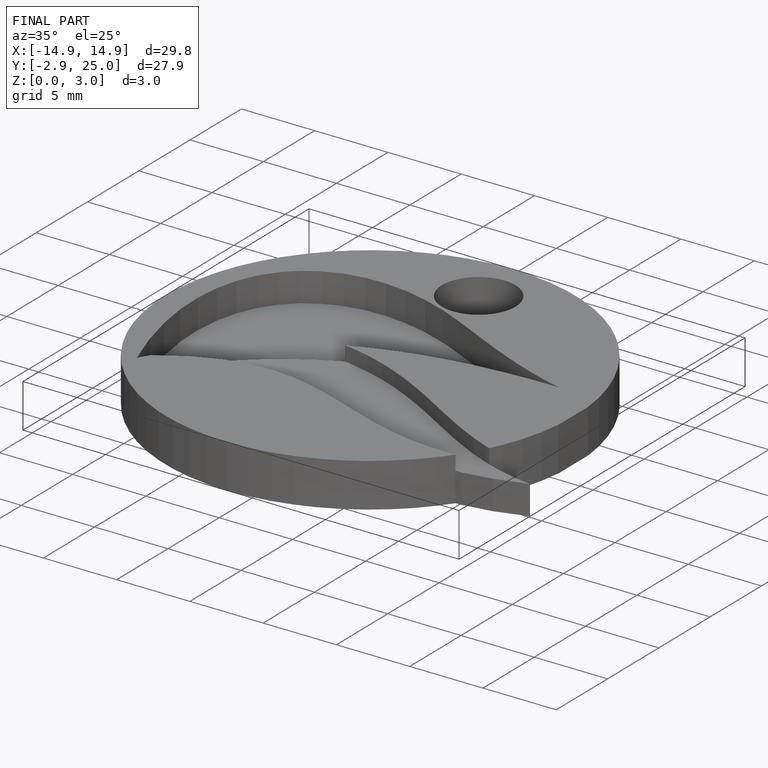
[diagram: finished part — iso view with bounding-box wireframe]
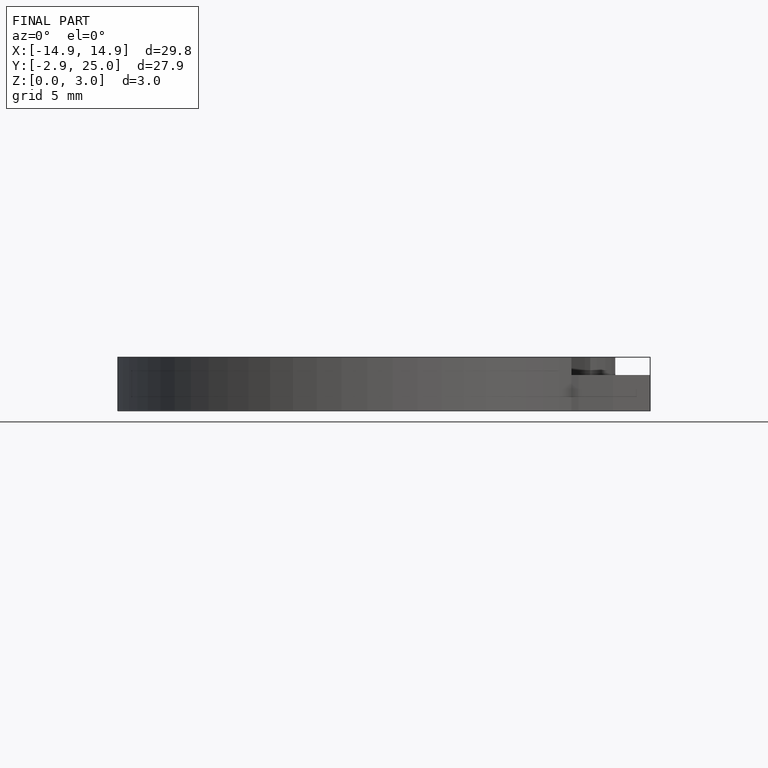
[diagram: finished part — front view with bounding-box wireframe]
